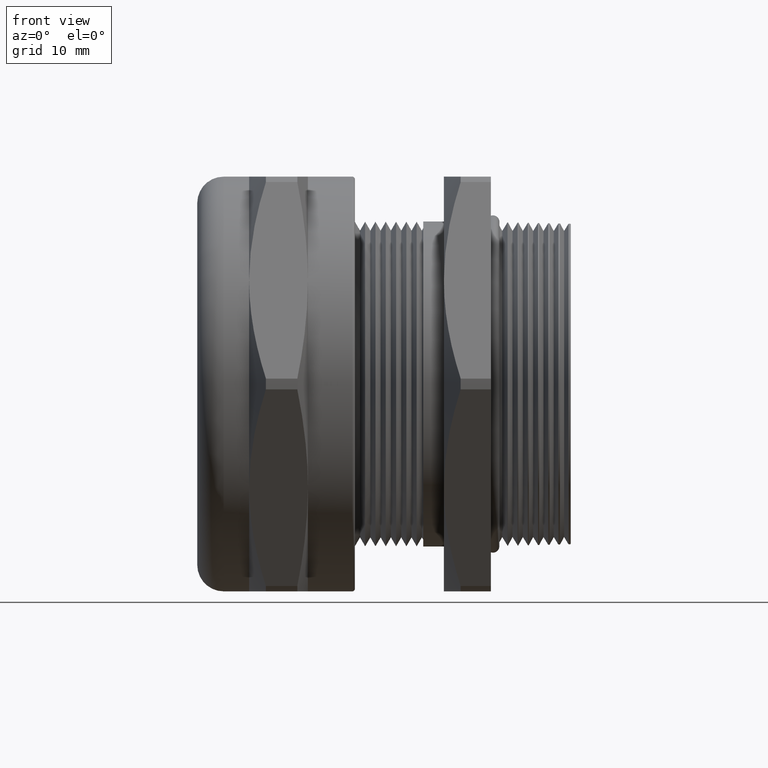
[diagram: clean part render]
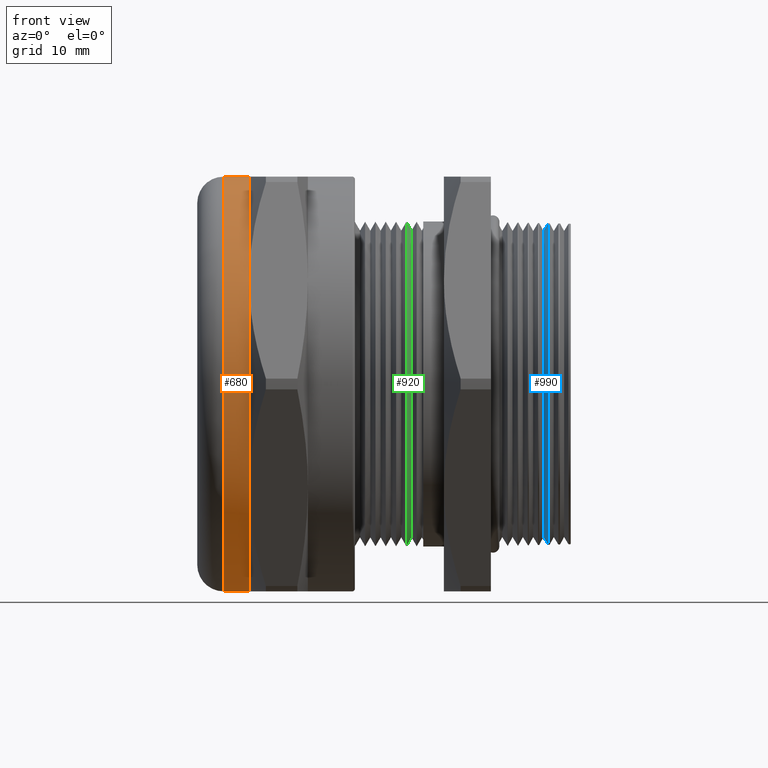
[diagram: same view with three faces highlighted in distinct colors, each labeled with its STEP entity id]
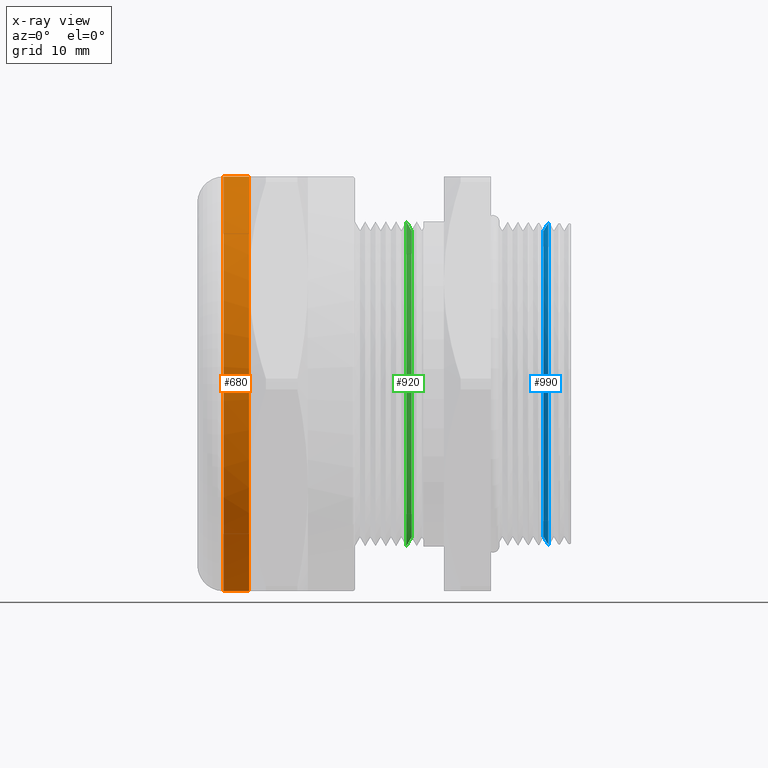
[diagram: x-ray of the same camera — body ghosted, the three highlighted faces saturated]
A machine part, front view with three faces highlighted in distinct colors.
The next image is the same camera in x-ray (body ghosted, the three faces saturated) — at least one of them is partly hidden behind the body in this view.
Their STEP definitions:

[orange] entity #680 — the highlighted cylindrical surface (partial cylindrical patch) has radius 20.447 mm, axis along (-1, 0, 0).
#163 = VERTEX_POINT ( 'NONE', #1699 ) ;
#182 = EDGE_CURVE ( 'NONE', #163, #212, #1726, .T. ) ;
#193 = EDGE_CURVE ( 'NONE', #482, #202, #1710, .T. ) ;
#202 = VERTEX_POINT ( 'NONE', #1739 ) ;
#212 = VERTEX_POINT ( 'NONE', #1789 ) ;
#482 = VERTEX_POINT ( 'NONE', #2334 ) ;
#664 = VERTEX_POINT ( 'NONE', #2682 ) ;
#676 = VERTEX_POINT ( 'NONE', #2709 ) ;
#680 = ADVANCED_FACE ( 'NONE', ( #2763 ), #2756, .T. ) ;
#681 = ORIENTED_EDGE ( 'NONE', *, *, #193, .F. ) ;
#682 = ORIENTED_EDGE ( 'NONE', *, *, #683, .T. ) ;
#683 = EDGE_CURVE ( 'NONE', #482, #676, #2757, .T. ) ;
#684 = ORIENTED_EDGE ( 'NONE', *, *, #685, .T. ) ;
#685 = EDGE_CURVE ( 'NONE', #676, #664, #2748, .T. ) ;
#686 = ORIENTED_EDGE ( 'NONE', *, *, #687, .T. ) ;
#687 = EDGE_CURVE ( 'NONE', #664, #163, #2743, .T. ) ;
#688 = ORIENTED_EDGE ( 'NONE', *, *, #182, .T. ) ;
#689 = ORIENTED_EDGE ( 'NONE', *, *, #690, .T. ) ;
#690 = EDGE_CURVE ( 'NONE', #212, #202, #2737, .T. ) ;
#704 = EDGE_LOOP ( 'NONE', ( #681, #682, #684, #686, #688, #689 ) ) ;
#1699 = CARTESIAN_POINT ( 'NONE',  ( -0.5234999999999998500, 0.0000000000000000000, 0.8050000000000000500 ) ) ;
#1707 = DIRECTION ( 'NONE',  ( -1.000000000000000000, 0.0000000000000000000, 0.0000000000000000000 ) ) ;
#1708 = VECTOR ( 'NONE', #1707, 39.37007874015748100 ) ;
#1709 = CARTESIAN_POINT ( 'NONE',  ( -2.719493435091831800, 9.858406733136192400E-017, -0.8050000000000000500 ) ) ;
#1710 = LINE ( 'NONE', #1709, #1708 ) ;
#1722 = DIRECTION ( 'NONE',  ( -1.000000000000000000, 0.0000000000000000000, 0.0000000000000000000 ) ) ;
#1724 = VECTOR ( 'NONE', #1722, 39.37007874015748100 ) ;
#1725 = CARTESIAN_POINT ( 'NONE',  ( -2.719493435091831800, 0.0000000000000000000, 0.8050000000000000500 ) ) ;
#1726 = LINE ( 'NONE', #1725, #1724 ) ;
#1739 = CARTESIAN_POINT ( 'NONE',  ( -0.6223999999999998400, 9.858406733136192400E-017, -0.8050000000000000500 ) ) ;
#1789 = CARTESIAN_POINT ( 'NONE',  ( -0.6223999999999998400, 0.0000000000000000000, 0.8050000000000000500 ) ) ;
#2334 = CARTESIAN_POINT ( 'NONE',  ( -0.5235000000000000800, 0.0000000000000000000, -0.8050000000000000500 ) ) ;
#2682 = CARTESIAN_POINT ( 'NONE',  ( -0.5234999999999998500, -0.6971504500464731400, 0.4025000000000001400 ) ) ;
#2709 = CARTESIAN_POINT ( 'NONE',  ( -0.5234999999999998500, -0.6971504500464732500, -0.4025000000000001900 ) ) ;
#2732 = DIRECTION ( 'NONE',  ( 0.0000000000000000000, 0.0000000000000000000, -1.000000000000000000 ) ) ;
#2733 = DIRECTION ( 'NONE',  ( 1.000000000000000000, 0.0000000000000000000, 0.0000000000000000000 ) ) ;
#2734 = CARTESIAN_POINT ( 'NONE',  ( -0.6223999999999998400, 0.0000000000000000000, 0.0000000000000000000 ) ) ;
#2736 = AXIS2_PLACEMENT_3D ( 'NONE', #2734, #2733, #2732 ) ;
#2737 = CIRCLE ( 'NONE', #2736, 0.8050000000000000500 ) ;
#2739 = DIRECTION ( 'NONE',  ( 0.0000000000000000000, 0.0000000000000000000, 1.000000000000000000 ) ) ;
#2740 = DIRECTION ( 'NONE',  ( -1.000000000000000000, 0.0000000000000000000, 0.0000000000000000000 ) ) ;
#2741 = CARTESIAN_POINT ( 'NONE',  ( -0.5235000000000000800, 0.0000000000000000000, 0.0000000000000000000 ) ) ;
#2742 = AXIS2_PLACEMENT_3D ( 'NONE', #2741, #2740, #2739 ) ;
#2743 = CIRCLE ( 'NONE', #2742, 0.8050000000000000500 ) ;
#2744 = DIRECTION ( 'NONE',  ( 0.0000000000000000000, 0.0000000000000000000, 1.000000000000000000 ) ) ;
#2745 = DIRECTION ( 'NONE',  ( -1.000000000000000000, 0.0000000000000000000, 0.0000000000000000000 ) ) ;
#2746 = CARTESIAN_POINT ( 'NONE',  ( -0.5235000000000000800, 0.0000000000000000000, 0.0000000000000000000 ) ) ;
#2747 = AXIS2_PLACEMENT_3D ( 'NONE', #2746, #2745, #2744 ) ;
#2748 = CIRCLE ( 'NONE', #2747, 0.8050000000000000500 ) ;
#2749 = DIRECTION ( 'NONE',  ( 0.0000000000000000000, 0.0000000000000000000, 1.000000000000000000 ) ) ;
#2750 = DIRECTION ( 'NONE',  ( -1.000000000000000000, 0.0000000000000000000, 0.0000000000000000000 ) ) ;
#2751 = CARTESIAN_POINT ( 'NONE',  ( -0.5235000000000000800, 0.0000000000000000000, 0.0000000000000000000 ) ) ;
#2752 = AXIS2_PLACEMENT_3D ( 'NONE', #2751, #2750, #2749 ) ;
#2753 = DIRECTION ( 'NONE',  ( 0.0000000000000000000, 0.0000000000000000000, 1.000000000000000000 ) ) ;
#2754 = DIRECTION ( 'NONE',  ( -1.000000000000000000, 0.0000000000000000000, 0.0000000000000000000 ) ) ;
#2755 = AXIS2_PLACEMENT_3D ( 'NONE', #2758, #2754, #2753 ) ;
#2756 = CYLINDRICAL_SURFACE ( 'NONE', #2755, 0.8050000000000000500 ) ;
#2757 = CIRCLE ( 'NONE', #2752, 0.8050000000000000500 ) ;
#2758 = CARTESIAN_POINT ( 'NONE',  ( -2.719493435091831800, 0.0000000000000000000, 0.0000000000000000000 ) ) ;
#2763 = FACE_OUTER_BOUND ( 'NONE', #704, .T. ) ;

[blue] entity #990 — the highlighted conical surface has half-angle 58.5 deg.
#171 = EDGE_CURVE ( 'NONE', #500, #486, #1673, .T. ) ;
#486 = VERTEX_POINT ( 'NONE', #2327 ) ;
#491 = VERTEX_POINT ( 'NONE', #2320 ) ;
#492 = VERTEX_POINT ( 'NONE', #2319 ) ;
#498 = EDGE_CURVE ( 'NONE', #491, #500, #2371, .T. ) ;
#500 = VERTEX_POINT ( 'NONE', #2363 ) ;
#510 = EDGE_CURVE ( 'NONE', #492, #486, #2407, .T. ) ;
#987 = EDGE_CURVE ( 'NONE', #491, #492, #3172, .T. ) ;
#990 = ADVANCED_FACE ( 'NONE', ( #3163 ), #3162, .T. ) ;
#991 = EDGE_LOOP ( 'NONE', ( #992, #993, #994, #995 ) ) ;
#992 = ORIENTED_EDGE ( 'NONE', *, *, #510, .F. ) ;
#993 = ORIENTED_EDGE ( 'NONE', *, *, #987, .F. ) ;
#994 = ORIENTED_EDGE ( 'NONE', *, *, #498, .T. ) ;
#995 = ORIENTED_EDGE ( 'NONE', *, *, #171, .T. ) ;
#1669 = DIRECTION ( 'NONE',  ( 0.0000000000000000000, 0.0000000000000000000, -1.000000000000000000 ) ) ;
#1670 = DIRECTION ( 'NONE',  ( -1.000000000000000000, 0.0000000000000000000, 0.0000000000000000000 ) ) ;
#1671 = CARTESIAN_POINT ( 'NONE',  ( 0.6374730685063572100, 0.0000000000000000000, 0.0000000000000000000 ) ) ;
#1672 = AXIS2_PLACEMENT_3D ( 'NONE', #1671, #1670, #1669 ) ;
#1673 = CIRCLE ( 'NONE', #1672, 0.6241743376768363900 ) ;
#2319 = CARTESIAN_POINT ( 'NONE',  ( 0.6190928930679831000, 0.0000000000000000000, 0.5941806173780087600 ) ) ;
#2320 = CARTESIAN_POINT ( 'NONE',  ( 0.6190928930679831000, 7.465910990536743400E-017, -0.5941806173780087600 ) ) ;
#2327 = CARTESIAN_POINT ( 'NONE',  ( 0.6374730685063572100, 0.0000000000000000000, 0.6241743376768363900 ) ) ;
#2363 = CARTESIAN_POINT ( 'NONE',  ( 0.6374730685063572100, 7.643931047458568900E-017, -0.6241743376768363900 ) ) ;
#2364 = DIRECTION ( 'NONE',  ( 0.5224985647159438000, 0.0000000000000000000, -0.8526401643540952900 ) ) ;
#2365 = VECTOR ( 'NONE', #2364, 39.37007874015748900 ) ;
#2366 = CARTESIAN_POINT ( 'NONE',  ( 0.6190928930679831000, 0.0000000000000000000, -0.5941806173780087600 ) ) ;
#2371 = LINE ( 'NONE', #2366, #2365 ) ;
#2404 = DIRECTION ( 'NONE',  ( 0.5224985647159438000, 1.044183048100716100E-016, 0.8526401643540952900 ) ) ;
#2405 = VECTOR ( 'NONE', #2404, 39.37007874015748900 ) ;
#2406 = CARTESIAN_POINT ( 'NONE',  ( 0.6190928930679831000, 7.276613911873767400E-017, 0.5941806173780087600 ) ) ;
#2407 = LINE ( 'NONE', #2406, #2405 ) ;
#3157 = DIRECTION ( 'NONE',  ( 0.0000000000000000000, 0.0000000000000000000, -1.000000000000000000 ) ) ;
#3158 = DIRECTION ( 'NONE',  ( 1.000000000000000000, 0.0000000000000000000, 0.0000000000000000000 ) ) ;
#3159 = CARTESIAN_POINT ( 'NONE',  ( 0.6190928930679831000, 0.0000000000000000000, 0.0000000000000000000 ) ) ;
#3160 = AXIS2_PLACEMENT_3D ( 'NONE', #3159, #3158, #3157 ) ;
#3162 = CONICAL_SURFACE ( 'NONE', #3160, 0.5941806173780087600, 1.021017612416688800 ) ;
#3163 = FACE_OUTER_BOUND ( 'NONE', #991, .T. ) ;
#3164 = DIRECTION ( 'NONE',  ( 0.0000000000000000000, 0.0000000000000000000, 1.000000000000000000 ) ) ;
#3165 = DIRECTION ( 'NONE',  ( -1.000000000000000000, 0.0000000000000000000, 0.0000000000000000000 ) ) ;
#3166 = CARTESIAN_POINT ( 'NONE',  ( 0.6190928930679831000, 0.0000000000000000000, 0.0000000000000000000 ) ) ;
#3167 = AXIS2_PLACEMENT_3D ( 'NONE', #3166, #3165, #3164 ) ;
#3172 = CIRCLE ( 'NONE', #3167, 0.5941806173780087600 ) ;

[green] entity #920 — the highlighted conical surface has half-angle 60 deg.
#920 = ADVANCED_FACE ( 'NONE', ( #3079 ), #3074, .T. ) ;
#921 = ORIENTED_EDGE ( 'NONE', *, *, #4175, .F. ) ;
#922 = ORIENTED_EDGE ( 'NONE', *, *, #923, .T. ) ;
#923 = EDGE_CURVE ( 'NONE', #3610, #3650, #3068, .T. ) ;
#924 = ORIENTED_EDGE ( 'NONE', *, *, #4167, .T. ) ;
#925 = ORIENTED_EDGE ( 'NONE', *, *, #941, .F. ) ;
#941 = EDGE_CURVE ( 'NONE', #4172, #4166, #3114, .T. ) ;
#942 = EDGE_LOOP ( 'NONE', ( #921, #922, #924, #925 ) ) ;
#3065 = DIRECTION ( 'NONE',  ( 0.0000000000000000000, 0.0000000000000000000, 1.000000000000000000 ) ) ;
#3066 = DIRECTION ( 'NONE',  ( -1.000000000000000000, 0.0000000000000000000, 0.0000000000000000000 ) ) ;
#3067 = AXIS2_PLACEMENT_3D ( 'NONE', #3073, #3066, #3065 ) ;
#3068 = CIRCLE ( 'NONE', #3067, 0.5953589838486220700 ) ;
#3069 = DIRECTION ( 'NONE',  ( 0.0000000000000000000, 0.0000000000000000000, 1.000000000000000000 ) ) ;
#3070 = DIRECTION ( 'NONE',  ( -1.000000000000000000, 0.0000000000000000000, 0.0000000000000000000 ) ) ;
#3071 = CARTESIAN_POINT ( 'NONE',  ( 0.08690000000000003300, 0.0000000000000000000, 0.0000000000000000000 ) ) ;
#3072 = AXIS2_PLACEMENT_3D ( 'NONE', #3071, #3070, #3069 ) ;
#3073 = CARTESIAN_POINT ( 'NONE',  ( 0.1069000000000000200, 0.0000000000000000000, 0.0000000000000000000 ) ) ;
#3074 = CONICAL_SURFACE ( 'NONE', #3072, 0.6299999999999997800, 1.047197551196600500 ) ;
#3079 = FACE_OUTER_BOUND ( 'NONE', #942, .T. ) ;
#3106 = DIRECTION ( 'NONE',  ( 0.0000000000000000000, 0.0000000000000000000, 1.000000000000000000 ) ) ;
#3107 = DIRECTION ( 'NONE',  ( -1.000000000000000000, 0.0000000000000000000, 0.0000000000000000000 ) ) ;
#3108 = CARTESIAN_POINT ( 'NONE',  ( 0.08690000000000003300, 0.0000000000000000000, 0.0000000000000000000 ) ) ;
#3109 = AXIS2_PLACEMENT_3D ( 'NONE', #3108, #3107, #3106 ) ;
#3114 = CIRCLE ( 'NONE', #3109, 0.6299999999999997800 ) ;
#3610 = VERTEX_POINT ( 'NONE', #3780 ) ;
#3650 = VERTEX_POINT ( 'NONE', #3841 ) ;
#3780 = CARTESIAN_POINT ( 'NONE',  ( 0.1069000000000000200, 7.503159786883340000E-017, -0.5953589838486220700 ) ) ;
#3814 = DIRECTION ( 'NONE',  ( -0.4999999999999976700, 0.0000000000000000000, 0.8660254037844400400 ) ) ;
#3815 = VECTOR ( 'NONE', #3814, 39.37007874015748100 ) ;
#3816 = CARTESIAN_POINT ( 'NONE',  ( 0.08690000000000003300, 0.0000000000000000000, 0.6299999999999997800 ) ) ;
#3817 = LINE ( 'NONE', #3816, #3815 ) ;
#3818 = CARTESIAN_POINT ( 'NONE',  ( 0.08690000000000003300, 7.715274834628324100E-017, 0.6299999999999997800 ) ) ;
#3841 = CARTESIAN_POINT ( 'NONE',  ( 0.1069000000000000200, 0.0000000000000000000, 0.5953589838486220700 ) ) ;
#3863 = DIRECTION ( 'NONE',  ( -0.4999999999999976700, 1.060575238724908600E-016, -0.8660254037844400400 ) ) ;
#3864 = VECTOR ( 'NONE', #3863, 39.37007874015748100 ) ;
#3865 = CARTESIAN_POINT ( 'NONE',  ( 0.08690000000000003300, 7.715274834628324100E-017, -0.6299999999999997800 ) ) ;
#3866 = LINE ( 'NONE', #3865, #3864 ) ;
#3872 = CARTESIAN_POINT ( 'NONE',  ( 0.08690000000000003300, 0.0000000000000000000, -0.6299999999999997800 ) ) ;
#4166 = VERTEX_POINT ( 'NONE', #3818 ) ;
#4167 = EDGE_CURVE ( 'NONE', #3650, #4166, #3817, .T. ) ;
#4172 = VERTEX_POINT ( 'NONE', #3872 ) ;
#4175 = EDGE_CURVE ( 'NONE', #3610, #4172, #3866, .T. ) ;